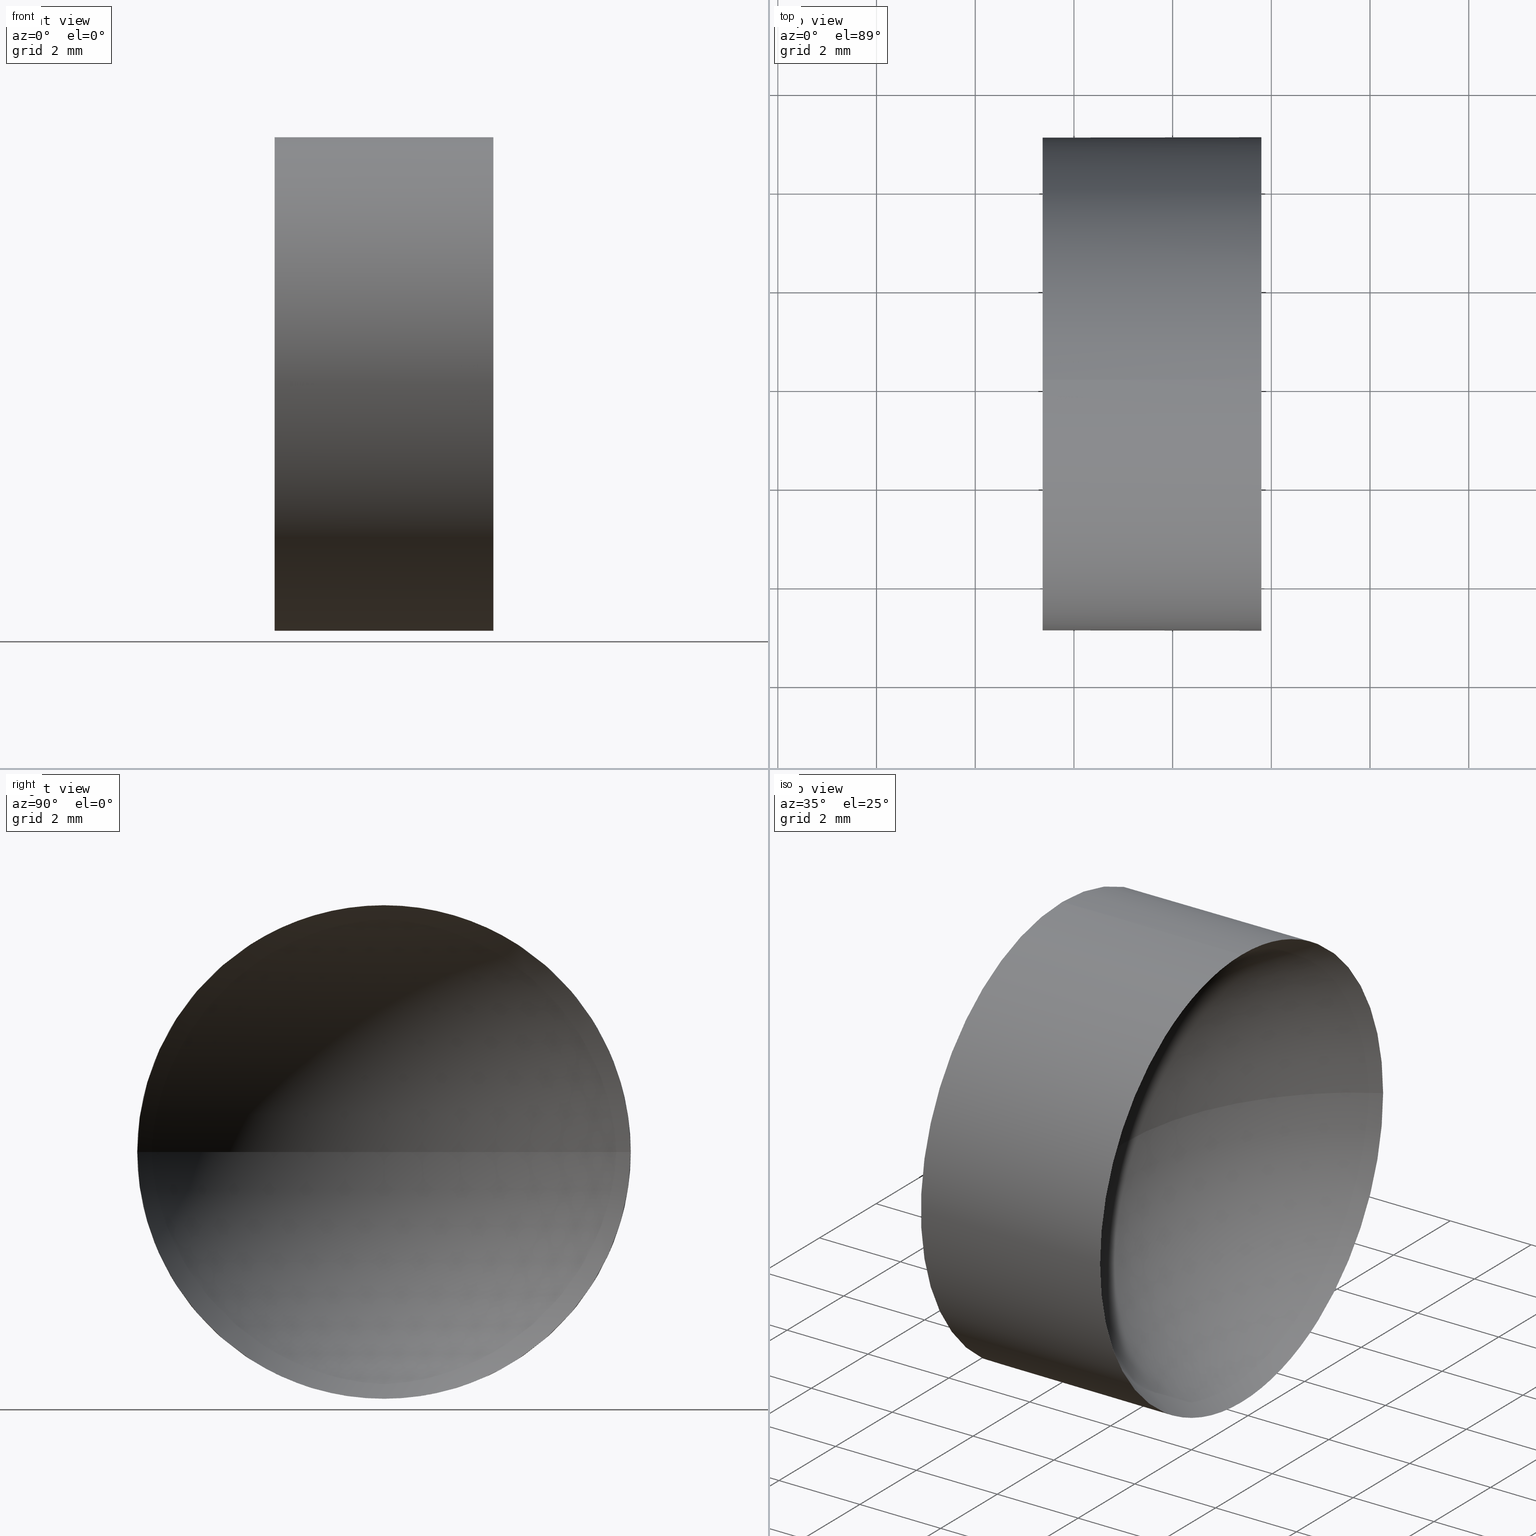
[diagram: canonical four-view strip — front | top / right | iso, engineering-drawing reading convention]
A machine part, canonical four-view strip (front | top / right | iso — engineering-drawing reading convention). The complete STEP part file that produces these views, byte-faithful:
ISO-10303-21;
HEADER;
FILE_DESCRIPTION (( 'STEP AP214' ),
    '1' );
FILE_NAME ('120251.STEP',
    '2019-06-24T06:56:35',
    ( '' ),
    ( '' ),
    'SwSTEP 2.0',
    'SolidWorks 2016',
    '' );
FILE_SCHEMA (( 'AUTOMOTIVE_DESIGN' ));
ENDSEC;

DATA;
#1 = AXIS2_PLACEMENT_3D ( 'NONE', #20, #125, #122 ) ;
#2 = AXIS2_PLACEMENT_3D ( 'NONE', #135, #167, #96 ) ;
#3 =( LENGTH_UNIT ( ) NAMED_UNIT ( * ) SI_UNIT ( .MILLI., .METRE. ) );
#4 = DIRECTION ( 'NONE',  ( -1.000000000000000000, -0.0000000000000000000, -0.0000000000000000000 ) ) ;
#5 = CARTESIAN_POINT ( 'NONE',  ( 45.79830707391277400, 26.06225218280608000, 0.0000000000000000000 ) ) ;
#6 =( NAMED_UNIT ( * ) PLANE_ANGLE_UNIT ( ) SI_UNIT ( $, .RADIAN. ) );
#7 = CARTESIAN_POINT ( 'NONE',  ( 41.36582732549757700, 26.06225218280608000, 0.0000000000000000000 ) ) ;
#8 = DIRECTION ( 'NONE',  ( 0.0000000000000000000, 0.0000000000000000000, 1.000000000000000000 ) ) ;
#9 = PRODUCT ( '120251', '120251', '', ( #152 ) ) ;
#10 = COLOUR_RGB ( '',1.000000000000000000, 1.000000000000000000, 1.000000000000000000 ) ;
#11 = AXIS2_PLACEMENT_3D ( 'NONE', #174, #186, #74 ) ;
#12 = CIRCLE ( 'NONE', #115, 5.729999999999998600 ) ;
#13 = PRODUCT_DEFINITION_FORMATION_WITH_SPECIFIED_SOURCE ( '�κ�', '', #9, .NOT_KNOWN. ) ;
#14 = VECTOR ( 'NONE', #177, 1000.000000000000000 ) ;
#15 = DIRECTION ( 'NONE',  ( 0.0000000000000000000, -1.000000000000000000, 0.0000000000000000000 ) ) ;
#16 = SURFACE_SIDE_STYLE ('',( #86 ) ) ;
#17 = SPHERICAL_SURFACE ( 'NONE', #144, 5.729999999999997800 ) ;
#18 = CARTESIAN_POINT ( 'NONE',  ( 39.73650001336414300, 26.06225218280608000, 0.0000000000000000000 ) ) ;
#19 = EDGE_CURVE ( 'NONE', #70, #58, #157, .T. ) ;
#20 = CARTESIAN_POINT ( 'NONE',  ( 0.0000000000000000000, 0.0000000000000000000, 0.0000000000000000000 ) ) ;
#21 = CARTESIAN_POINT ( 'NONE',  ( 42.86703892959313600, 26.06225218280608400, 0.0000000000000000000 ) ) ;
#22 = DIRECTION ( 'NONE',  ( -1.000000000000000000, 0.0000000000000000000, 0.0000000000000000000 ) ) ;
#23 = ORIENTED_EDGE ( 'NONE', *, *, #45, .T. ) ;
#24 = ADVANCED_FACE ( 'NONE', ( #53 ), #90, .T. ) ;
#25 = AXIS2_PLACEMENT_3D ( 'NONE', #109, #46, #22 ) ;
#26 = ORIENTED_EDGE ( 'NONE', *, *, #131, .F. ) ;
#27 = VERTEX_POINT ( 'NONE', #146 ) ;
#28 =( GEOMETRIC_REPRESENTATION_CONTEXT ( 3 ) GLOBAL_UNCERTAINTY_ASSIGNED_CONTEXT ( ( #79 ) ) GLOBAL_UNIT_ASSIGNED_CONTEXT ( ( #182, #6, #110 ) ) REPRESENTATION_CONTEXT ( 'NONE', 'WORKASPACE' ) );
#29 = FACE_OUTER_BOUND ( 'NONE', #98, .T. ) ;
#30 = VERTEX_POINT ( 'NONE', #56 ) ;
#31 = DIRECTION ( 'NONE',  ( -1.000000000000000000, -0.0000000000000000000, -0.0000000000000000000 ) ) ;
#32 = FILL_AREA_STYLE_COLOUR ( '', #52 ) ;
#33 = ORIENTED_EDGE ( 'NONE', *, *, #159, .T. ) ;
#34 = APPLICATION_CONTEXT ( 'automotive_design' ) ;
#35 = DIRECTION ( 'NONE',  ( -1.000000000000000000, -0.0000000000000000000, -0.0000000000000000000 ) ) ;
#36 = CIRCLE ( 'NONE', #2, 4.999999999999997300 ) ;
#37 = DIRECTION ( 'NONE',  ( 0.0000000000000000000, 0.0000000000000000000, -1.000000000000000000 ) ) ;
#38 = ADVANCED_FACE ( 'NONE', ( #141 ), #67, .F. ) ;
#39 = ADVANCED_FACE ( 'NONE', ( #29 ), #17, .F. ) ;
#40 = EDGE_CURVE ( 'NONE', #30, #58, #127, .T. ) ;
#41 = VERTEX_POINT ( 'NONE', #42 ) ;
#42 = CARTESIAN_POINT ( 'NONE',  ( 45.79830707391277400, 31.06225218280608000, 6.123233995736760400E-016 ) ) ;
#43 = CARTESIAN_POINT ( 'NONE',  ( 39.73650001336414300, 26.06225218280608000, 0.0000000000000000000 ) ) ;
#44 = FILL_AREA_STYLE ('',( #32 ) ) ;
#45 = EDGE_CURVE ( 'NONE', #27, #70, #103, .T. ) ;
#46 = DIRECTION ( 'NONE',  ( 0.0000000000000000000, 0.0000000000000000000, -1.000000000000000000 ) ) ;
#47 = DIRECTION ( 'NONE',  ( -1.000000000000000000, -0.0000000000000000000, -0.0000000000000000000 ) ) ;
#48 = PRESENTATION_STYLE_ASSIGNMENT (( #119 ) ) ;
#49 = ORIENTED_EDGE ( 'NONE', *, *, #107, .F. ) ;
#50 = ADVANCED_BREP_SHAPE_REPRESENTATION ( '120251', ( #88, #1 ), #28 ) ;
#51 = SHAPE_DEFINITION_REPRESENTATION ( #183, #50 ) ;
#52 = COLOUR_RGB ( '',1.000000000000000000, 1.000000000000000000, 1.000000000000000000 ) ;
#53 = FACE_OUTER_BOUND ( 'NONE', #184, .T. ) ;
#54 = ORIENTED_EDGE ( 'NONE', *, *, #116, .F. ) ;
#55 =( NAMED_UNIT ( * ) PLANE_ANGLE_UNIT ( ) SI_UNIT ( $, .RADIAN. ) );
#56 = CARTESIAN_POINT ( 'NONE',  ( 45.79830707391277400, 26.06225218280608000, -4.999999999999997300 ) ) ;
#57 = CARTESIAN_POINT ( 'NONE',  ( 45.79830707391277400, 26.06225218280608000, 0.0000000000000000000 ) ) ;
#58 = VERTEX_POINT ( 'NONE', #75 ) ;
#59 = AXIS2_PLACEMENT_3D ( 'NONE', #18, #60, #176 ) ;
#60 = DIRECTION ( 'NONE',  ( -1.000000000000000000, -0.0000000000000000000, -0.0000000000000000000 ) ) ;
#61 = SURFACE_SIDE_STYLE ('',( #85 ) ) ;
#62 =( NAMED_UNIT ( * ) PLANE_ANGLE_UNIT ( ) SI_UNIT ( $, .RADIAN. ) );
#63 = DIRECTION ( 'NONE',  ( 0.0000000000000000000, 0.0000000000000000000, 1.000000000000000000 ) ) ;
#64 = CIRCLE ( 'NONE', #104, 4.999999999999997300 ) ;
#65 = ORIENTED_EDGE ( 'NONE', *, *, #40, .T. ) ;
#66 = ORIENTED_EDGE ( 'NONE', *, *, #116, .T. ) ;
#67 = SPHERICAL_SURFACE ( 'NONE', #84, 5.729999999999997800 ) ;
#68 = EDGE_LOOP ( 'NONE', ( #91, #65, #132, #106, #170 ) ) ;
#69 = STYLED_ITEM ( 'NONE', ( #48 ), #88 ) ;
#70 = VERTEX_POINT ( 'NONE', #145 ) ;
#71 = UNCERTAINTY_MEASURE_WITH_UNIT (LENGTH_MEASURE( 1.000000000000000100E-005 ), #179, 'distance_accuracy_value', 'NONE');
#72 = CIRCLE ( 'NONE', #142, 4.999999999999997300 ) ;
#73 = AXIS2_PLACEMENT_3D ( 'NONE', #7, #35, #108 ) ;
#74 = DIRECTION ( 'NONE',  ( 0.0000000000000000000, 0.0000000000000000000, 1.000000000000000000 ) ) ;
#75 = CARTESIAN_POINT ( 'NONE',  ( 41.36582732549757700, 26.06225218280608000, -4.999999999999997300 ) ) ;
#76 = ORIENTED_EDGE ( 'NONE', *, *, #159, .F. ) ;
#77 = SURFACE_STYLE_USAGE ( .BOTH. , #61 ) ;
#78 = EDGE_CURVE ( 'NONE', #120, #27, #168, .T. ) ;
#79 = UNCERTAINTY_MEASURE_WITH_UNIT (LENGTH_MEASURE( 1.000000000000000100E-005 ), #182, 'distance_accuracy_value', 'NONE');
#80 = FILL_AREA_STYLE ('',( #151 ) ) ;
#81 = DIRECTION ( 'NONE',  ( 0.0000000000000000000, -1.224646799147353200E-016, 1.000000000000000000 ) ) ;
#82 =( NAMED_UNIT ( * ) SI_UNIT ( $, .STERADIAN. ) SOLID_ANGLE_UNIT ( ) );
#83 = ADVANCED_FACE ( 'NONE', ( #150 ), #114, .T. ) ;
#84 = AXIS2_PLACEMENT_3D ( 'NONE', #134, #162, #147 ) ;
#85 = SURFACE_STYLE_FILL_AREA ( #80 ) ;
#86 = SURFACE_STYLE_FILL_AREA ( #44 ) ;
#87 = MECHANICAL_DESIGN_GEOMETRIC_PRESENTATION_REPRESENTATION (  '', ( #69 ), #161 ) ;
#88 = MANIFOLD_SOLID_BREP ( '��ת1', #138 ) ;
#89 = PLANE ( 'NONE',  #173 ) ;
#90 = CYLINDRICAL_SURFACE ( 'NONE', #126, 4.999999999999997300 ) ;
#91 = ORIENTED_EDGE ( 'NONE', *, *, #100, .T. ) ;
#92 = PRESENTATION_LAYER_ASSIGNMENT (  '', '', ( #69 ) ) ;
#93 =( NAMED_UNIT ( * ) SI_UNIT ( $, .STERADIAN. ) SOLID_ANGLE_UNIT ( ) );
#94 = VERTEX_POINT ( 'NONE', #21 ) ;
#95 = APPLICATION_PROTOCOL_DEFINITION ( 'draft international standard', 'automotive_design', 1998, #166 ) ;
#96 = DIRECTION ( 'NONE',  ( 0.0000000000000000000, 0.0000000000000000000, 1.000000000000000000 ) ) ;
#97 = DIRECTION ( 'NONE',  ( -1.000000000000000000, -0.0000000000000000000, -0.0000000000000000000 ) ) ;
#98 = EDGE_LOOP ( 'NONE', ( #113, #33, #54, #101 ) ) ;
#99 = ADVANCED_FACE ( 'NONE', ( #165 ), #89, .F. ) ;
#100 = EDGE_CURVE ( 'NONE', #41, #30, #72, .T. ) ;
#101 = ORIENTED_EDGE ( 'NONE', *, *, #139, .F. ) ;
#102 = DIRECTION ( 'NONE',  ( 0.0000000000000000000, 0.0000000000000000000, 1.000000000000000000 ) ) ;
#103 = LINE ( 'NONE', #133, #14 ) ;
#104 = AXIS2_PLACEMENT_3D ( 'NONE', #5, #97, #8 ) ;
#105 = DIRECTION ( 'NONE',  ( 0.0000000000000000000, 0.0000000000000000000, 1.000000000000000000 ) ) ;
#106 = ORIENTED_EDGE ( 'NONE', *, *, #45, .F. ) ;
#107 = EDGE_CURVE ( 'NONE', #27, #41, #36, .T. ) ;
#108 = DIRECTION ( 'NONE',  ( 0.0000000000000000000, 0.0000000000000000000, 1.000000000000000000 ) ) ;
#109 = CARTESIAN_POINT ( 'NONE',  ( 48.59703892959313300, 26.06225218280608400, 0.0000000000000000000 ) ) ;
#110 =( NAMED_UNIT ( * ) SI_UNIT ( $, .STERADIAN. ) SOLID_ANGLE_UNIT ( ) );
#111 = PRODUCT_RELATED_PRODUCT_CATEGORY ( 'part', '', ( #9 ) ) ;
#112 = CIRCLE ( 'NONE', #25, 5.729999999999998600 ) ;
#113 = ORIENTED_EDGE ( 'NONE', *, *, #100, .F. ) ;
#114 = CYLINDRICAL_SURFACE ( 'NONE', #59, 4.999999999999997300 ) ;
#115 = AXIS2_PLACEMENT_3D ( 'NONE', #163, #81, #180 ) ;
#116 = EDGE_CURVE ( 'NONE', #120, #94, #112, .T. ) ;
#117 = VECTOR ( 'NONE', #31, 1000.000000000000000 ) ;
#118 = CARTESIAN_POINT ( 'NONE',  ( 39.73650001336414300, 26.06225218280608000, -4.999999999999997300 ) ) ;
#119 = SURFACE_STYLE_USAGE ( .BOTH. , #16 ) ;
#120 = VERTEX_POINT ( 'NONE', #137 ) ;
#121 = CARTESIAN_POINT ( 'NONE',  ( 48.59703892959313300, 26.06225218280608400, 0.0000000000000000000 ) ) ;
#122 = DIRECTION ( 'NONE',  ( 1.000000000000000000, 0.0000000000000000000, 0.0000000000000000000 ) ) ;
#123 = DIRECTION ( 'NONE',  ( 1.000000000000000000, 0.0000000000000000000, 0.0000000000000000000 ) ) ;
#124 = CARTESIAN_POINT ( 'NONE',  ( 41.36582732549757700, 26.06225218280608000, 0.0000000000000000000 ) ) ;
#125 = DIRECTION ( 'NONE',  ( 0.0000000000000000000, 0.0000000000000000000, 1.000000000000000000 ) ) ;
#126 = AXIS2_PLACEMENT_3D ( 'NONE', #43, #4, #102 ) ;
#127 = LINE ( 'NONE', #118, #117 ) ;
#128 = PRODUCT_DEFINITION_CONTEXT ( 'detailed design', #166, 'design' ) ;
#129 = CIRCLE ( 'NONE', #73, 4.999999999999997300 ) ;
#130 = ORIENTED_EDGE ( 'NONE', *, *, #19, .T. ) ;
#131 = EDGE_CURVE ( 'NONE', #58, #70, #129, .T. ) ;
#132 = ORIENTED_EDGE ( 'NONE', *, *, #19, .F. ) ;
#133 = CARTESIAN_POINT ( 'NONE',  ( 39.73650001336414300, 26.06225218280608000, 4.999999999999997300 ) ) ;
#134 = CARTESIAN_POINT ( 'NONE',  ( 48.59703892959313300, 26.06225218280608400, 0.0000000000000000000 ) ) ;
#135 = CARTESIAN_POINT ( 'NONE',  ( 45.79830707391277400, 26.06225218280608000, 0.0000000000000000000 ) ) ;
#136 = APPLICATION_PROTOCOL_DEFINITION ( 'draft international standard', 'automotive_design', 1998, #34 ) ;
#137 = CARTESIAN_POINT ( 'NONE',  ( 45.79830707391277400, 21.06225218280608800, 0.0000000000000000000 ) ) ;
#138 = CLOSED_SHELL ( 'NONE', ( #83, #39, #38, #24, #99 ) ) ;
#139 = EDGE_CURVE ( 'NONE', #30, #120, #64, .T. ) ;
#140 = ORIENTED_EDGE ( 'NONE', *, *, #40, .F. ) ;
#141 = FACE_OUTER_BOUND ( 'NONE', #158, .T. ) ;
#142 = AXIS2_PLACEMENT_3D ( 'NONE', #181, #47, #63 ) ;
#143 = ORIENTED_EDGE ( 'NONE', *, *, #78, .T. ) ;
#144 = AXIS2_PLACEMENT_3D ( 'NONE', #121, #149, #15 ) ;
#145 = CARTESIAN_POINT ( 'NONE',  ( 41.36582732549757700, 26.06225218280608000, 4.999999999999997300 ) ) ;
#146 = CARTESIAN_POINT ( 'NONE',  ( 45.79830707391277400, 26.06225218280608000, 4.999999999999997300 ) ) ;
#147 = DIRECTION ( 'NONE',  ( 0.0000000000000000000, -1.000000000000000000, 0.0000000000000000000 ) ) ;
#148 = MECHANICAL_DESIGN_GEOMETRIC_PRESENTATION_REPRESENTATION (  '', ( #185 ), #171 ) ;
#149 = DIRECTION ( 'NONE',  ( 0.0000000000000000000, 0.0000000000000000000, 1.000000000000000000 ) ) ;
#150 = FACE_OUTER_BOUND ( 'NONE', #68, .T. ) ;
#151 = FILL_AREA_STYLE_COLOUR ( '', #10 ) ;
#152 = PRODUCT_CONTEXT ( 'NONE', #34, 'mechanical' ) ;
#153 = PRESENTATION_LAYER_ASSIGNMENT (  '', '', ( #185 ) ) ;
#154 = PRESENTATION_STYLE_ASSIGNMENT (( #77 ) ) ;
#155 = ORIENTED_EDGE ( 'NONE', *, *, #139, .T. ) ;
#156 = UNCERTAINTY_MEASURE_WITH_UNIT (LENGTH_MEASURE( 1.000000000000000100E-005 ), #3, 'distance_accuracy_value', 'NONE');
#157 = CIRCLE ( 'NONE', #11, 4.999999999999997300 ) ;
#158 = EDGE_LOOP ( 'NONE', ( #76, #49, #175, #66 ) ) ;
#159 = EDGE_CURVE ( 'NONE', #41, #94, #12, .T. ) ;
#160 = DIRECTION ( 'NONE',  ( -1.000000000000000000, -0.0000000000000000000, -0.0000000000000000000 ) ) ;
#161 =( GEOMETRIC_REPRESENTATION_CONTEXT ( 3 ) GLOBAL_UNCERTAINTY_ASSIGNED_CONTEXT ( ( #156 ) ) GLOBAL_UNIT_ASSIGNED_CONTEXT ( ( #3, #55, #82 ) ) REPRESENTATION_CONTEXT ( 'NONE', 'WORKASPACE' ) );
#162 = DIRECTION ( 'NONE',  ( 0.0000000000000000000, 0.0000000000000000000, 1.000000000000000000 ) ) ;
#163 = CARTESIAN_POINT ( 'NONE',  ( 48.59703892959313300, 26.06225218280608400, 0.0000000000000000000 ) ) ;
#164 = AXIS2_PLACEMENT_3D ( 'NONE', #57, #160, #105 ) ;
#165 = FACE_OUTER_BOUND ( 'NONE', #169, .T. ) ;
#166 = APPLICATION_CONTEXT ( 'automotive_design' ) ;
#167 = DIRECTION ( 'NONE',  ( -1.000000000000000000, -0.0000000000000000000, -0.0000000000000000000 ) ) ;
#168 = CIRCLE ( 'NONE', #164, 4.999999999999997300 ) ;
#169 = EDGE_LOOP ( 'NONE', ( #130, #172 ) ) ;
#170 = ORIENTED_EDGE ( 'NONE', *, *, #107, .T. ) ;
#171 =( GEOMETRIC_REPRESENTATION_CONTEXT ( 3 ) GLOBAL_UNCERTAINTY_ASSIGNED_CONTEXT ( ( #71 ) ) GLOBAL_UNIT_ASSIGNED_CONTEXT ( ( #179, #62, #93 ) ) REPRESENTATION_CONTEXT ( 'NONE', 'WORKASPACE' ) );
#172 = ORIENTED_EDGE ( 'NONE', *, *, #131, .T. ) ;
#173 = AXIS2_PLACEMENT_3D ( 'NONE', #124, #123, #37 ) ;
#174 = CARTESIAN_POINT ( 'NONE',  ( 41.36582732549757700, 26.06225218280608000, 0.0000000000000000000 ) ) ;
#175 = ORIENTED_EDGE ( 'NONE', *, *, #78, .F. ) ;
#176 = DIRECTION ( 'NONE',  ( 0.0000000000000000000, 0.0000000000000000000, 1.000000000000000000 ) ) ;
#177 = DIRECTION ( 'NONE',  ( -1.000000000000000000, -0.0000000000000000000, -0.0000000000000000000 ) ) ;
#178 = PRODUCT_DEFINITION ( 'δ֪', '', #13, #128 ) ;
#179 =( LENGTH_UNIT ( ) NAMED_UNIT ( * ) SI_UNIT ( .MILLI., .METRE. ) );
#180 = DIRECTION ( 'NONE',  ( 0.0000000000000000000, -1.000000000000000000, -1.224646799147353000E-016 ) ) ;
#181 = CARTESIAN_POINT ( 'NONE',  ( 45.79830707391277400, 26.06225218280608000, 0.0000000000000000000 ) ) ;
#182 =( LENGTH_UNIT ( ) NAMED_UNIT ( * ) SI_UNIT ( .MILLI., .METRE. ) );
#183 = PRODUCT_DEFINITION_SHAPE ( 'NONE', 'NONE',  #178 ) ;
#184 = EDGE_LOOP ( 'NONE', ( #140, #155, #143, #23, #26 ) ) ;
#185 = STYLED_ITEM ( 'NONE', ( #154 ), #50 ) ;
#186 = DIRECTION ( 'NONE',  ( -1.000000000000000000, -0.0000000000000000000, -0.0000000000000000000 ) ) ;
ENDSEC;
END-ISO-10303-21;
